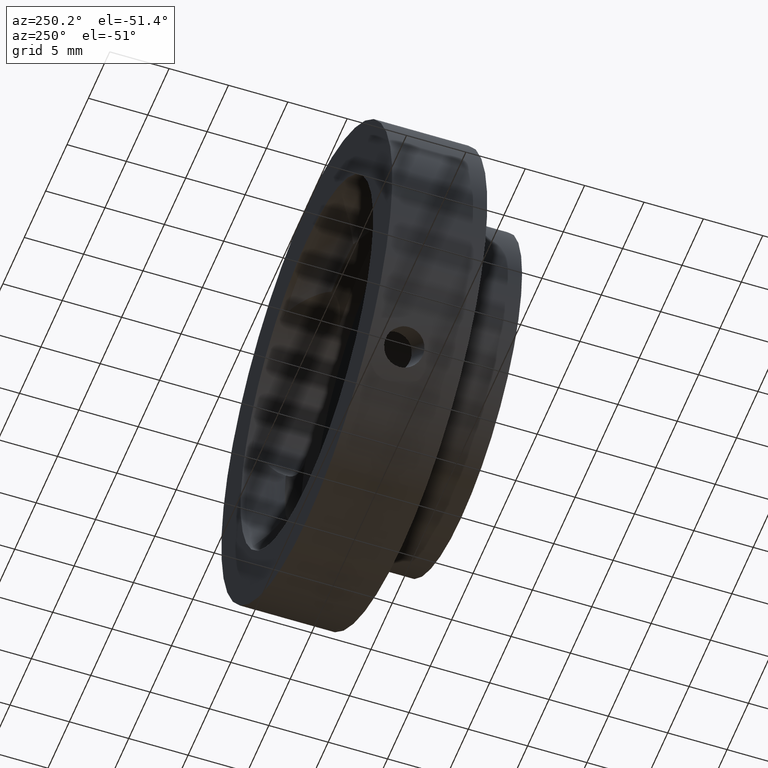
[diagram: clean part render]
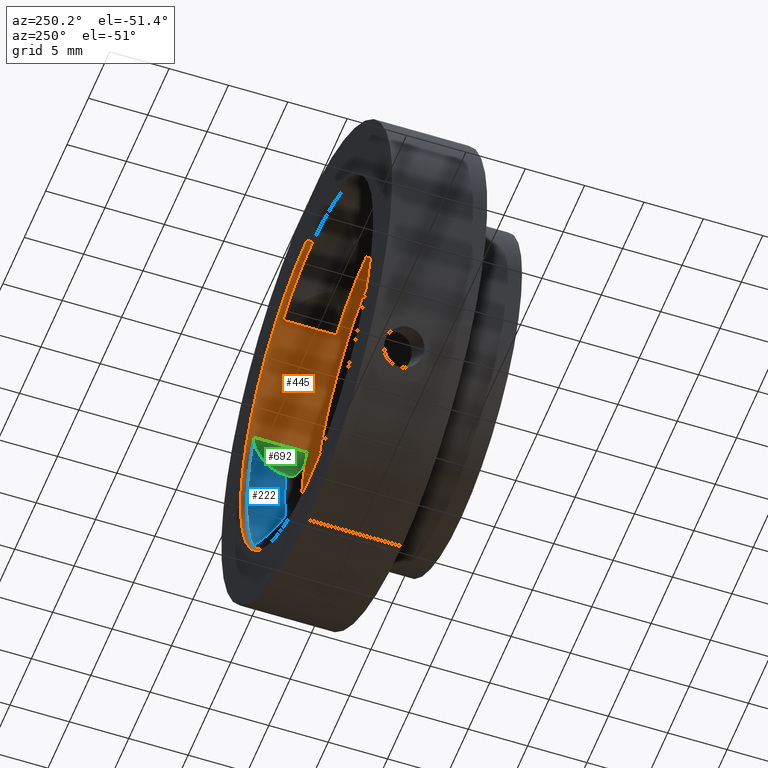
[diagram: same view with three faces highlighted in distinct colors, each labeled with its STEP entity id]
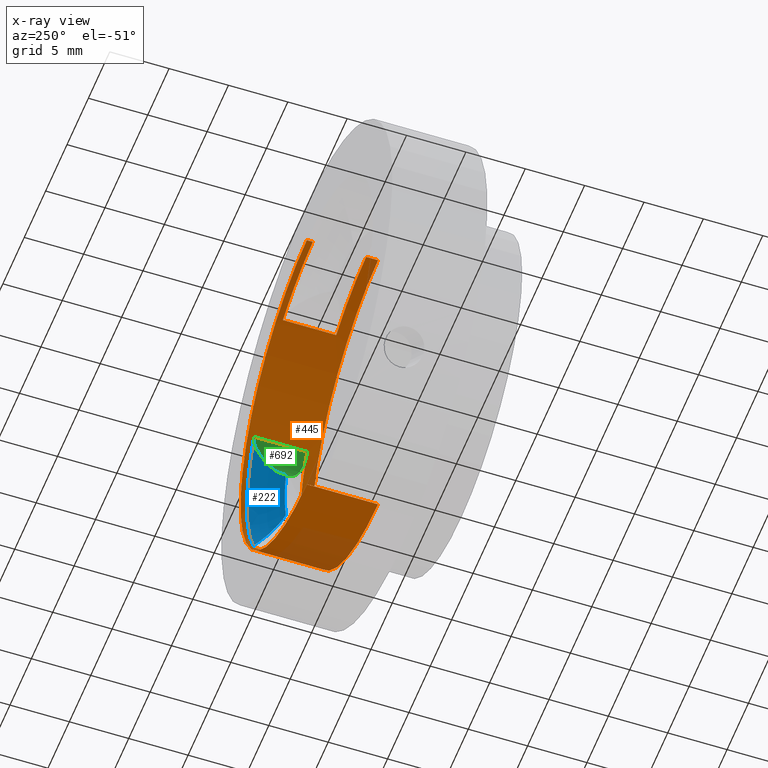
[diagram: x-ray of the same camera — body ghosted, the three highlighted faces saturated]
A machine part, auxiliary view with three faces highlighted in distinct colors.
The next image is the same camera in x-ray (body ghosted, the three faces saturated) — at least one of them is partly hidden behind the body in this view.
Their STEP definitions:

[orange] entity #445 — the highlighted cylindrical surface (partial cylindrical patch) has radius 15.5 mm, axis along (-0, -1, -0).
#14 = ORIENTED_EDGE ( 'NONE', *, *, #511, .F. ) ;
#45 = VERTEX_POINT ( 'NONE', #144 ) ;
#50 = LINE ( 'NONE', #851, #519 ) ;
#76 = EDGE_LOOP ( 'NONE', ( #183, #236, #212, #982 ) ) ;
#78 = AXIS2_PLACEMENT_3D ( 'NONE', #1057, #319, #504 ) ;
#89 = EDGE_CURVE ( 'NONE', #947, #45, #92, .T. ) ;
#90 = CARTESIAN_POINT ( 'NONE',  ( 13.82843777740317900, 3.496721311475398800, 7.001736115885017300 ) ) ;
#92 = LINE ( 'NONE', #1066, #1026 ) ;
#96 = CARTESIAN_POINT ( 'NONE',  ( 0.0000000000000000000, 0.0000000000000000000, -15.50000000000000000 ) ) ;
#118 = DIRECTION ( 'NONE',  ( 0.0000000000000000000, 1.000000000000000000, 0.0000000000000000000 ) ) ;
#123 = CIRCLE ( 'NONE', #416, 15.50000000000000000 ) ;
#129 = EDGE_CURVE ( 'NONE', #960, #1108, #123, .T. ) ;
#144 = CARTESIAN_POINT ( 'NONE',  ( 13.82843777740318100, -1.003278688524598300, 7.001736115885018200 ) ) ;
#153 = CIRCLE ( 'NONE', #1089, 15.50000000000000000 ) ;
#183 = ORIENTED_EDGE ( 'NONE', *, *, #272, .T. ) ;
#201 = CARTESIAN_POINT ( 'NONE',  ( 1.898202538678397600E-015, 3.496721311475398800, 15.50000000000000000 ) ) ;
#212 = ORIENTED_EDGE ( 'NONE', *, *, #1180, .F. ) ;
#219 = DIRECTION ( 'NONE',  ( -1.000000000000000000, 0.0000000000000000000, -3.491481338843133400E-015 ) ) ;
#234 = ORIENTED_EDGE ( 'NONE', *, *, #805, .T. ) ;
#236 = ORIENTED_EDGE ( 'NONE', *, *, #945, .T. ) ;
#241 = DIRECTION ( 'NONE',  ( -0.0000000000000000000, -1.000000000000000000, -0.0000000000000000000 ) ) ;
#247 = ORIENTED_EDGE ( 'NONE', *, *, #731, .T. ) ;
#253 = ORIENTED_EDGE ( 'NONE', *, *, #1172, .F. ) ;
#272 = EDGE_CURVE ( 'NONE', #45, #1139, #1070, .T. ) ;
#277 = CARTESIAN_POINT ( 'NONE',  ( 0.0000000000000000000, -2.003278688524598600, -15.50000000000000000 ) ) ;
#281 = EDGE_CURVE ( 'NONE', #1067, #392, #153, .T. ) ;
#287 = DIRECTION ( 'NONE',  ( -0.0000000000000000000, -1.000000000000000000, -0.0000000000000000000 ) ) ;
#293 = DIRECTION ( 'NONE',  ( 0.0000000000000000000, 1.000000000000000000, 0.0000000000000000000 ) ) ;
#294 = CARTESIAN_POINT ( 'NONE',  ( 1.898202538678397600E-015, 3.996721311475401000, 15.50000000000000000 ) ) ;
#319 = DIRECTION ( 'NONE',  ( -0.0000000000000000000, -1.000000000000000000, -0.0000000000000000000 ) ) ;
#324 = CARTESIAN_POINT ( 'NONE',  ( 13.82843777740317700, 3.496721311475398800, -7.001736115885020000 ) ) ;
#367 = VERTEX_POINT ( 'NONE', #584 ) ;
#384 = EDGE_CURVE ( 'NONE', #861, #367, #1018, .T. ) ;
#392 = VERTEX_POINT ( 'NONE', #294 ) ;
#416 = AXIS2_PLACEMENT_3D ( 'NONE', #613, #241, #422 ) ;
#422 = DIRECTION ( 'NONE',  ( 0.0000000000000000000, 0.0000000000000000000, -1.000000000000000000 ) ) ;
#445 = ADVANCED_FACE ( 'NONE', ( #1081, #656 ), #990, .F. ) ;
#468 = CARTESIAN_POINT ( 'NONE',  ( 0.0000000000000000000, -1.003278688524598300, 0.0000000000000000000 ) ) ;
#470 = DIRECTION ( 'NONE',  ( -0.0000000000000000000, 1.000000000000000000, -0.0000000000000000000 ) ) ;
#492 = EDGE_LOOP ( 'NONE', ( #587, #698, #234, #705, #14, #789, #247, #253 ) ) ;
#496 = DIRECTION ( 'NONE',  ( -0.0000000000000000000, -1.000000000000000000, -0.0000000000000000000 ) ) ;
#504 = DIRECTION ( 'NONE',  ( 0.0000000000000000000, 0.0000000000000000000, -1.000000000000000000 ) ) ;
#511 = EDGE_CURVE ( 'NONE', #861, #1108, #755, .T. ) ;
#512 = CARTESIAN_POINT ( 'NONE',  ( 1.898202538678397600E-015, -1.003278688524598300, 15.50000000000000000 ) ) ;
#519 = VECTOR ( 'NONE', #1024, 1000.000000000000000 ) ;
#576 = CARTESIAN_POINT ( 'NONE',  ( 1.898202538678397600E-015, 0.0000000000000000000, 15.50000000000000000 ) ) ;
#584 = CARTESIAN_POINT ( 'NONE',  ( 7.001736115884971100, -1.003278688524598300, 13.82843777740320400 ) ) ;
#587 = ORIENTED_EDGE ( 'NONE', *, *, #922, .F. ) ;
#613 = CARTESIAN_POINT ( 'NONE',  ( 0.0000000000000000000, -2.003278688524598600, 0.0000000000000000000 ) ) ;
#634 = LINE ( 'NONE', #96, #961 ) ;
#649 = DIRECTION ( 'NONE',  ( 0.0000000000000000000, 1.000000000000000000, 0.0000000000000000000 ) ) ;
#656 = FACE_BOUND ( 'NONE', #76, .T. ) ;
#668 = VECTOR ( 'NONE', #293, 1000.000000000000000 ) ;
#672 = CARTESIAN_POINT ( 'NONE',  ( 1.898202538678397600E-015, -2.003278688524598600, 15.50000000000000000 ) ) ;
#673 = CARTESIAN_POINT ( 'NONE',  ( -0.0000000000000000000, -1.003278688524598300, 0.0000000000000000000 ) ) ;
#675 = CARTESIAN_POINT ( 'NONE',  ( 7.001736115884970200, 0.0000000000000000000, 13.82843777740320400 ) ) ;
#691 = AXIS2_PLACEMENT_3D ( 'NONE', #468, #470, #1115 ) ;
#698 = ORIENTED_EDGE ( 'NONE', *, *, #281, .F. ) ;
#705 = ORIENTED_EDGE ( 'NONE', *, *, #129, .T. ) ;
#731 = EDGE_CURVE ( 'NONE', #367, #1023, #944, .T. ) ;
#733 = DIRECTION ( 'NONE',  ( -0.0000000000000000000, 1.000000000000000000, -0.0000000000000000000 ) ) ;
#745 = CARTESIAN_POINT ( 'NONE',  ( 7.001736115884971100, 3.496721311475398800, 13.82843777740320400 ) ) ;
#755 = LINE ( 'NONE', #576, #1210 ) ;
#783 = VERTEX_POINT ( 'NONE', #324 ) ;
#789 = ORIENTED_EDGE ( 'NONE', *, *, #384, .T. ) ;
#805 = EDGE_CURVE ( 'NONE', #1067, #960, #634, .T. ) ;
#832 = CARTESIAN_POINT ( 'NONE',  ( 13.82843777740318100, 0.0000000000000000000, -7.001736115885022600 ) ) ;
#851 = CARTESIAN_POINT ( 'NONE',  ( 1.898202538678397600E-015, 0.0000000000000000000, 15.50000000000000000 ) ) ;
#861 = VERTEX_POINT ( 'NONE', #512 ) ;
#879 = LINE ( 'NONE', #832, #668 ) ;
#887 = DIRECTION ( 'NONE',  ( -0.0000000000000000000, -1.000000000000000000, -0.0000000000000000000 ) ) ;
#897 = CIRCLE ( 'NONE', #925, 15.50000000000000000 ) ;
#917 = DIRECTION ( 'NONE',  ( 0.0000000000000000000, 0.0000000000000000000, 1.000000000000000000 ) ) ;
#922 = EDGE_CURVE ( 'NONE', #392, #1037, #50, .T. ) ;
#925 = AXIS2_PLACEMENT_3D ( 'NONE', #1143, #649, #1207 ) ;
#938 = CARTESIAN_POINT ( 'NONE',  ( 0.0000000000000000000, 3.996721311475401000, 0.0000000000000000000 ) ) ;
#944 = LINE ( 'NONE', #675, #1046 ) ;
#945 = EDGE_CURVE ( 'NONE', #1139, #783, #879, .T. ) ;
#947 = VERTEX_POINT ( 'NONE', #90 ) ;
#949 = DIRECTION ( 'NONE',  ( -0.0000000000000000000, -1.000000000000000000, -0.0000000000000000000 ) ) ;
#960 = VERTEX_POINT ( 'NONE', #277 ) ;
#961 = VECTOR ( 'NONE', #287, 1000.000000000000000 ) ;
#982 = ORIENTED_EDGE ( 'NONE', *, *, #89, .T. ) ;
#990 = CYLINDRICAL_SURFACE ( 'NONE', #78, 15.50000000000000000 ) ;
#1001 = AXIS2_PLACEMENT_3D ( 'NONE', #1103, #733, #917 ) ;
#1018 = CIRCLE ( 'NONE', #1043, 15.50000000000000000 ) ;
#1023 = VERTEX_POINT ( 'NONE', #745 ) ;
#1024 = DIRECTION ( 'NONE',  ( -0.0000000000000000000, -1.000000000000000000, -0.0000000000000000000 ) ) ;
#1026 = VECTOR ( 'NONE', #887, 1000.000000000000000 ) ;
#1037 = VERTEX_POINT ( 'NONE', #201 ) ;
#1038 = DIRECTION ( 'NONE',  ( 0.0000000000000000000, 0.0000000000000000000, -1.000000000000000000 ) ) ;
#1042 = CARTESIAN_POINT ( 'NONE',  ( 0.0000000000000000000, 3.996721311475401000, -15.50000000000000000 ) ) ;
#1043 = AXIS2_PLACEMENT_3D ( 'NONE', #673, #118, #219 ) ;
#1046 = VECTOR ( 'NONE', #1145, 1000.000000000000000 ) ;
#1057 = CARTESIAN_POINT ( 'NONE',  ( 0.0000000000000000000, 0.0000000000000000000, 0.0000000000000000000 ) ) ;
#1066 = CARTESIAN_POINT ( 'NONE',  ( 13.82843777740318100, 0.0000000000000000000, 7.001736115885018200 ) ) ;
#1067 = VERTEX_POINT ( 'NONE', #1042 ) ;
#1070 = CIRCLE ( 'NONE', #691, 15.50000000000000000 ) ;
#1081 = FACE_OUTER_BOUND ( 'NONE', #492, .T. ) ;
#1082 = CARTESIAN_POINT ( 'NONE',  ( 13.82843777740317700, -1.003278688524598300, -7.001736115885020000 ) ) ;
#1089 = AXIS2_PLACEMENT_3D ( 'NONE', #938, #949, #1038 ) ;
#1103 = CARTESIAN_POINT ( 'NONE',  ( 0.0000000000000000000, 3.496721311475398800, 0.0000000000000000000 ) ) ;
#1108 = VERTEX_POINT ( 'NONE', #672 ) ;
#1115 = DIRECTION ( 'NONE',  ( 0.0000000000000000000, 0.0000000000000000000, 1.000000000000000000 ) ) ;
#1139 = VERTEX_POINT ( 'NONE', #1082 ) ;
#1143 = CARTESIAN_POINT ( 'NONE',  ( 0.0000000000000000000, 3.496721311475398800, 0.0000000000000000000 ) ) ;
#1145 = DIRECTION ( 'NONE',  ( 0.0000000000000000000, 1.000000000000000000, 0.0000000000000000000 ) ) ;
#1172 = EDGE_CURVE ( 'NONE', #1037, #1023, #897, .T. ) ;
#1180 = EDGE_CURVE ( 'NONE', #947, #783, #1189, .T. ) ;
#1189 = CIRCLE ( 'NONE', #1001, 15.50000000000000000 ) ;
#1207 = DIRECTION ( 'NONE',  ( -1.000000000000000000, 0.0000000000000000000, -3.491481338843133400E-015 ) ) ;
#1210 = VECTOR ( 'NONE', #496, 1000.000000000000000 ) ;

[blue] entity #222 — the highlighted toroidal blend (fillet) surface has major radius 11.6376 mm and minor (blend) radius 4 mm.
#80 = CARTESIAN_POINT ( 'NONE',  ( 13.25762967536095600, 0.9967213114754001100, -2.546616459341416700 ) ) ;
#84 = CARTESIAN_POINT ( 'NONE',  ( 14.01021880579709000, 3.432943482454928800, 6.590073185079467600 ) ) ;
#90 = CARTESIAN_POINT ( 'NONE',  ( 13.82843777740317900, 3.496721311475398800, 7.001736115885017300 ) ) ;
#91 = CARTESIAN_POINT ( 'NONE',  ( 14.25835776549406500, 2.813748851048250500, 5.412700853374135900 ) ) ;
#95 = CIRCLE ( 'NONE', #206, 13.50000000000000200 ) ;
#103 = CARTESIAN_POINT ( 'NONE',  ( 14.13999295347882800, 3.273051393570930700, -6.189004834192738600 ) ) ;
#106 = CARTESIAN_POINT ( 'NONE',  ( 14.26120932474830900, 2.571175032170879900, -5.038555607198995600 ) ) ;
#131 = EDGE_LOOP ( 'NONE', ( #151, #333, #618, #208 ) ) ;
#151 = ORIENTED_EDGE ( 'NONE', *, *, #594, .F. ) ;
#176 = CARTESIAN_POINT ( 'NONE',  ( 13.82843777740317900, 3.496721311475398800, 7.001736115885017300 ) ) ;
#179 = CARTESIAN_POINT ( 'NONE',  ( 14.04612359629972200, 3.397747316493663100, 6.489008565772347300 ) ) ;
#187 = CARTESIAN_POINT ( 'NONE',  ( 13.39562035408102700, 1.083520752990927400, 2.702823780702455500 ) ) ;
#196 = CARTESIAN_POINT ( 'NONE',  ( 13.25762967536095600, 0.9967213114754001100, -2.546616459341416700 ) ) ;
#206 = AXIS2_PLACEMENT_3D ( 'NONE', #553, #625, #810 ) ;
#208 = ORIENTED_EDGE ( 'NONE', *, *, #1027, .T. ) ;
#222 = ADVANCED_FACE ( 'NONE', ( #565 ), #325, .F. ) ;
#249 = EDGE_CURVE ( 'NONE', #612, #947, #1185, .T. ) ;
#279 = CARTESIAN_POINT ( 'NONE',  ( 13.92728520272107100, 3.482702181723709200, 6.795423100085600700 ) ) ;
#283 = CARTESIAN_POINT ( 'NONE',  ( 13.83064545047063600, 1.492243382149811300, 3.381854016549936200 ) ) ;
#296 = CARTESIAN_POINT ( 'NONE',  ( 13.52013238326904700, 1.180122378412333100, -2.868624667381837000 ) ) ;
#304 = CARTESIAN_POINT ( 'NONE',  ( 13.83282539570872200, 1.494898955604357900, -3.386112026407424900 ) ) ;
#310 = CARTESIAN_POINT ( 'NONE',  ( 14.07105243634742700, 1.832620452792586200, -3.919630033476384500 ) ) ;
#324 = CARTESIAN_POINT ( 'NONE',  ( 13.82843777740317700, 3.496721311475398800, -7.001736115885020000 ) ) ;
#325 = TOROIDAL_SURFACE ( 'NONE', #1125, 11.63755391998808100, 4.000000000000000000 ) ;
#333 = ORIENTED_EDGE ( 'NONE', *, *, #249, .T. ) ;
#365 = CARTESIAN_POINT ( 'NONE',  ( 13.73743365685482800, 1.384557832305451300, 3.208198596321001400 ) ) ;
#397 = CARTESIAN_POINT ( 'NONE',  ( 13.73830664889749200, 1.385430873498022100, -3.209635250878713400 ) ) ;
#462 = CARTESIAN_POINT ( 'NONE',  ( 14.06908253521113200, 1.828975310511953900, 3.913994817353015700 ) ) ;
#488 = CARTESIAN_POINT ( 'NONE',  ( 13.39689499330854600, 1.084322531590098200, -2.704266689609635200 ) ) ;
#553 = CARTESIAN_POINT ( 'NONE',  ( 0.0000000000000000000, 0.9967213114754001100, 0.0000000000000000000 ) ) ;
#560 = CARTESIAN_POINT ( 'NONE',  ( 13.93055567902950300, 3.496721311475397400, -6.800053129661803200 ) ) ;
#563 = CARTESIAN_POINT ( 'NONE',  ( 14.18461276868674800, 3.164342333903261000, 5.991144206907839600 ) ) ;
#565 = FACE_OUTER_BOUND ( 'NONE', #131, .T. ) ;
#594 = EDGE_CURVE ( 'NONE', #612, #1196, #95, .T. ) ;
#612 = VERTEX_POINT ( 'NONE', #1183 ) ;
#618 = ORIENTED_EDGE ( 'NONE', *, *, #1180, .T. ) ;
#625 = DIRECTION ( 'NONE',  ( -0.0000000000000000000, 1.000000000000000000, -0.0000000000000000000 ) ) ;
#639 = DIRECTION ( 'NONE',  ( 0.0000000000000000000, 0.0000000000000000000, 1.000000000000000000 ) ) ;
#658 = CARTESIAN_POINT ( 'NONE',  ( 14.24354601419043400, 2.936082351651922600, 5.604751089734754100 ) ) ;
#733 = DIRECTION ( 'NONE',  ( -0.0000000000000000000, 1.000000000000000000, -0.0000000000000000000 ) ) ;
#750 = DIRECTION ( 'NONE',  ( -0.0000000000000000000, 1.000000000000000000, -0.0000000000000000000 ) ) ;
#767 = CARTESIAN_POINT ( 'NONE',  ( 14.18446421572413400, 3.164748382257523300, -5.991872890390301800 ) ) ;
#771 = CARTESIAN_POINT ( 'NONE',  ( 14.24346657340509000, 2.936558714237183800, -5.605516290167559000 ) ) ;
#783 = VERTEX_POINT ( 'NONE', #324 ) ;
#810 = DIRECTION ( 'NONE',  ( 0.0000000000000000000, 0.0000000000000000000, 1.000000000000000000 ) ) ;
#828 = CARTESIAN_POINT ( 'NONE',  ( 14.17359776413360700, 2.074599534079521600, 4.287132146555266300 ) ) ;
#841 = CARTESIAN_POINT ( 'NONE',  ( 13.82843777740317700, 3.496721311475398800, -7.001736115885020000 ) ) ;
#869 = CARTESIAN_POINT ( 'NONE',  ( 14.25814437215297500, 2.815893110031541200, -5.416066041006011700 ) ) ;
#915 = B_SPLINE_CURVE_WITH_KNOTS ( 'NONE', 3,
 ( #841, #560, #1216, #103, #767, #771, #869, #106, #951, #948, #310, #304, #397, #296, #488, #196 ),
 .UNSPECIFIED., .F., .F.,
 ( 4, 2, 2, 2, 2, 2, 2, 4 ),
 ( 0.02974911212890492600, 0.03043181742467572500, 0.03111452272044652700, 0.03179722801621733000, 0.03247993331198812500, 0.03384534390352973000, 0.03452804919930052600, 0.03521075449507132800 ),
 .UNSPECIFIED. ) ;
#917 = DIRECTION ( 'NONE',  ( 0.0000000000000000000, 0.0000000000000000000, 1.000000000000000000 ) ) ;
#918 = CARTESIAN_POINT ( 'NONE',  ( 0.0000000000000000000, 4.536678175484936100, 0.0000000000000000000 ) ) ;
#923 = CARTESIAN_POINT ( 'NONE',  ( 14.14029251314679000, 3.272480531539266200, 6.187858914650734100 ) ) ;
#928 = CARTESIAN_POINT ( 'NONE',  ( 14.26105648040222600, 2.568169107596817800, 5.033977164828974600 ) ) ;
#947 = VERTEX_POINT ( 'NONE', #90 ) ;
#948 = CARTESIAN_POINT ( 'NONE',  ( 14.17364710891937000, 2.073780035164028800, -4.285891765774734600 ) ) ;
#951 = CARTESIAN_POINT ( 'NONE',  ( 14.24949681428402000, 2.446878306503640100, -4.850646867616921700 ) ) ;
#1001 = AXIS2_PLACEMENT_3D ( 'NONE', #1103, #733, #917 ) ;
#1013 = CARTESIAN_POINT ( 'NONE',  ( 14.24906778481064300, 2.444241620916230800, 4.846655786138564200 ) ) ;
#1027 = EDGE_CURVE ( 'NONE', #783, #1196, #915, .T. ) ;
#1100 = CARTESIAN_POINT ( 'NONE',  ( 13.52017169499468200, 1.180211099684867800, 2.868758540964417400 ) ) ;
#1103 = CARTESIAN_POINT ( 'NONE',  ( 0.0000000000000000000, 3.496721311475398800, 0.0000000000000000000 ) ) ;
#1107 = CARTESIAN_POINT ( 'NONE',  ( 13.88016180269157300, 3.496721311475396100, 6.899581099834843000 ) ) ;
#1125 = AXIS2_PLACEMENT_3D ( 'NONE', #918, #750, #639 ) ;
#1180 = EDGE_CURVE ( 'NONE', #947, #783, #1189, .T. ) ;
#1183 = CARTESIAN_POINT ( 'NONE',  ( 13.25762967536095600, 0.9967213114754001100, 2.546616459341414900 ) ) ;
#1185 = B_SPLINE_CURVE_WITH_KNOTS ( 'NONE', 3,
 ( #1209, #187, #1100, #365, #283, #462, #828, #1013, #928, #91, #658, #563, #923, #179, #84, #279, #1107, #176 ),
 .UNSPECIFIED., .F., .F.,
 ( 4, 2, 2, 2, 2, 2, 2, 2, 4 ),
 ( 0.01843639225525057700, 0.01911242044255699900, 0.01978844862986342500, 0.02114050500447627000, 0.02181653319178269600, 0.02249256137908911900, 0.02316858956639554500, 0.02350660366004875300, 0.02384461775370196400 ),
 .UNSPECIFIED. ) ;
#1189 = CIRCLE ( 'NONE', #1001, 15.50000000000000000 ) ;
#1196 = VERTEX_POINT ( 'NONE', #80 ) ;
#1209 = CARTESIAN_POINT ( 'NONE',  ( 13.25762967536095600, 0.9967213114754001100, 2.546616459341414900 ) ) ;
#1216 = CARTESIAN_POINT ( 'NONE',  ( 14.01439464805222800, 3.439781015952472200, -6.590287990156288500 ) ) ;

[green] entity #692 — the highlighted cylindrical surface (partial cylindrical patch) has radius 4 mm, axis along (-0, -1, -0).
#1 = EDGE_CURVE ( 'NONE', #45, #612, #73, .T. ) ;
#4 = CARTESIAN_POINT ( 'NONE',  ( 14.00246224642834700, -0.003546811837863159000, 3.770200804390844600 ) ) ;
#33 = CARTESIAN_POINT ( 'NONE',  ( 14.23647292475321900, -0.5005679040371767700, 4.719426488371850900 ) ) ;
#45 = VERTEX_POINT ( 'NONE', #144 ) ;
#73 = B_SPLINE_CURVE_WITH_KNOTS ( 'NONE', 3,
 ( #758, #662, #321, #383, #1031, #1061, #101, #1159, #33, #475, #1129, #4, #855, #701, #893, #516 ),
 .UNSPECIFIED., .F., .F.,
 ( 4, 2, 2, 2, 2, 2, 2, 4 ),
 ( 0.0000000000000000000, 0.0006558006649841858800, 0.001311601329968371800, 0.001967401994952557500, 0.002623202659936743500, 0.003279003324920930000, 0.003934803989905116800, 0.005246405319873489700 ),
 .UNSPECIFIED. ) ;
#84 = CARTESIAN_POINT ( 'NONE',  ( 14.01021880579709000, 3.432943482454928800, 6.590073185079467600 ) ) ;
#89 = EDGE_CURVE ( 'NONE', #947, #45, #92, .T. ) ;
#90 = CARTESIAN_POINT ( 'NONE',  ( 13.82843777740317900, 3.496721311475398800, 7.001736115885017300 ) ) ;
#91 = CARTESIAN_POINT ( 'NONE',  ( 14.25835776549406500, 2.813748851048250500, 5.412700853374135900 ) ) ;
#92 = LINE ( 'NONE', #1066, #1026 ) ;
#101 = CARTESIAN_POINT ( 'NONE',  ( 14.26256558010930000, -0.7311872454261962900, 5.339095620868278000 ) ) ;
#144 = CARTESIAN_POINT ( 'NONE',  ( 13.82843777740318100, -1.003278688524598300, 7.001736115885018200 ) ) ;
#176 = CARTESIAN_POINT ( 'NONE',  ( 13.82843777740317900, 3.496721311475398800, 7.001736115885017300 ) ) ;
#179 = CARTESIAN_POINT ( 'NONE',  ( 14.04612359629972200, 3.397747316493663100, 6.489008565772347300 ) ) ;
#187 = CARTESIAN_POINT ( 'NONE',  ( 13.39562035408102700, 1.083520752990927400, 2.702823780702455500 ) ) ;
#249 = EDGE_CURVE ( 'NONE', #612, #947, #1185, .T. ) ;
#279 = CARTESIAN_POINT ( 'NONE',  ( 13.92728520272107100, 3.482702181723709200, 6.795423100085600700 ) ) ;
#283 = CARTESIAN_POINT ( 'NONE',  ( 13.83064545047063600, 1.492243382149811300, 3.381854016549936200 ) ) ;
#321 = CARTESIAN_POINT ( 'NONE',  ( 14.01085047407638000, -0.9896731535179073000, 6.600826220187104600 ) ) ;
#338 = ORIENTED_EDGE ( 'NONE', *, *, #249, .F. ) ;
#365 = CARTESIAN_POINT ( 'NONE',  ( 13.73743365685482800, 1.384557832305451300, 3.208198596321001400 ) ) ;
#383 = CARTESIAN_POINT ( 'NONE',  ( 14.14097572055838000, -0.9368531738407619400, 6.186634895889765700 ) ) ;
#462 = CARTESIAN_POINT ( 'NONE',  ( 14.06908253521113200, 1.828975310511953900, 3.913994817353015700 ) ) ;
#466 = CYLINDRICAL_SURFACE ( 'NONE', #718, 4.000000000000000000 ) ;
#475 = CARTESIAN_POINT ( 'NONE',  ( 14.16935429003622100, -0.3171632405268981500, 4.325741373005549800 ) ) ;
#516 = CARTESIAN_POINT ( 'NONE',  ( 13.25762967536095600, 0.9967213114754001100, 2.546616459341414900 ) ) ;
#563 = CARTESIAN_POINT ( 'NONE',  ( 14.18461276868674800, 3.164342333903261000, 5.991144206907839600 ) ) ;
#607 = FACE_OUTER_BOUND ( 'NONE', #954, .T. ) ;
#612 = VERTEX_POINT ( 'NONE', #1183 ) ;
#658 = CARTESIAN_POINT ( 'NONE',  ( 14.24354601419043400, 2.936082351651922600, 5.604751089734754100 ) ) ;
#662 = CARTESIAN_POINT ( 'NONE',  ( 13.92875962279543200, -1.003278688524598600, 6.803600343019526000 ) ) ;
#692 = ADVANCED_FACE ( 'NONE', ( #607 ), #466, .F. ) ;
#700 = ORIENTED_EDGE ( 'NONE', *, *, #89, .F. ) ;
#701 = CARTESIAN_POINT ( 'NONE',  ( 13.68648844361475100, 0.4666334739222349200, 3.098813107771985400 ) ) ;
#718 = AXIS2_PLACEMENT_3D ( 'NONE', #1111, #1206, #744 ) ;
#744 = DIRECTION ( 'NONE',  ( 0.0000000000000000000, 0.0000000000000000000, -1.000000000000000000 ) ) ;
#758 = CARTESIAN_POINT ( 'NONE',  ( 13.82843777740318100, -1.003278688524598300, 7.001736115885018200 ) ) ;
#828 = CARTESIAN_POINT ( 'NONE',  ( 14.17359776413360700, 2.074599534079521600, 4.287132146555266300 ) ) ;
#855 = CARTESIAN_POINT ( 'NONE',  ( 13.93018955168543200, 0.1110216883971029700, 3.594159660575695800 ) ) ;
#887 = DIRECTION ( 'NONE',  ( -0.0000000000000000000, -1.000000000000000000, -0.0000000000000000000 ) ) ;
#889 = ORIENTED_EDGE ( 'NONE', *, *, #1, .F. ) ;
#893 = CARTESIAN_POINT ( 'NONE',  ( 13.48698166478315700, 0.7225108918373863700, 2.806246024532160100 ) ) ;
#923 = CARTESIAN_POINT ( 'NONE',  ( 14.14029251314679000, 3.272480531539266200, 6.187858914650734100 ) ) ;
#928 = CARTESIAN_POINT ( 'NONE',  ( 14.26105648040222600, 2.568169107596817800, 5.033977164828974600 ) ) ;
#947 = VERTEX_POINT ( 'NONE', #90 ) ;
#954 = EDGE_LOOP ( 'NONE', ( #700, #338, #889 ) ) ;
#1013 = CARTESIAN_POINT ( 'NONE',  ( 14.24906778481064300, 2.444241620916230800, 4.846655786138564200 ) ) ;
#1026 = VECTOR ( 'NONE', #887, 1000.000000000000000 ) ;
#1031 = CARTESIAN_POINT ( 'NONE',  ( 14.18923731020143800, -0.8970387337985456000, 5.972995476481092900 ) ) ;
#1061 = CARTESIAN_POINT ( 'NONE',  ( 14.24989257442928500, -0.7939122239476899000, 5.548632048319105600 ) ) ;
#1066 = CARTESIAN_POINT ( 'NONE',  ( 13.82843777740318100, 0.0000000000000000000, 7.001736115885018200 ) ) ;
#1100 = CARTESIAN_POINT ( 'NONE',  ( 13.52017169499468200, 1.180211099684867800, 2.868758540964417400 ) ) ;
#1107 = CARTESIAN_POINT ( 'NONE',  ( 13.88016180269157300, 3.496721311475396100, 6.899581099834843000 ) ) ;
#1111 = CARTESIAN_POINT ( 'NONE',  ( 10.25980867355719700, 0.0000000000000000000, 5.194836473075980600 ) ) ;
#1129 = CARTESIAN_POINT ( 'NONE',  ( 14.12195177037435200, -0.2176041397599099700, 4.136114009574438200 ) ) ;
#1159 = CARTESIAN_POINT ( 'NONE',  ( 14.25606654202591600, -0.5848506972110258900, 4.925028016251235200 ) ) ;
#1183 = CARTESIAN_POINT ( 'NONE',  ( 13.25762967536095600, 0.9967213114754001100, 2.546616459341414900 ) ) ;
#1185 = B_SPLINE_CURVE_WITH_KNOTS ( 'NONE', 3,
 ( #1209, #187, #1100, #365, #283, #462, #828, #1013, #928, #91, #658, #563, #923, #179, #84, #279, #1107, #176 ),
 .UNSPECIFIED., .F., .F.,
 ( 4, 2, 2, 2, 2, 2, 2, 2, 4 ),
 ( 0.01843639225525057700, 0.01911242044255699900, 0.01978844862986342500, 0.02114050500447627000, 0.02181653319178269600, 0.02249256137908911900, 0.02316858956639554500, 0.02350660366004875300, 0.02384461775370196400 ),
 .UNSPECIFIED. ) ;
#1206 = DIRECTION ( 'NONE',  ( -0.0000000000000000000, -1.000000000000000000, -0.0000000000000000000 ) ) ;
#1209 = CARTESIAN_POINT ( 'NONE',  ( 13.25762967536095600, 0.9967213114754001100, 2.546616459341414900 ) ) ;